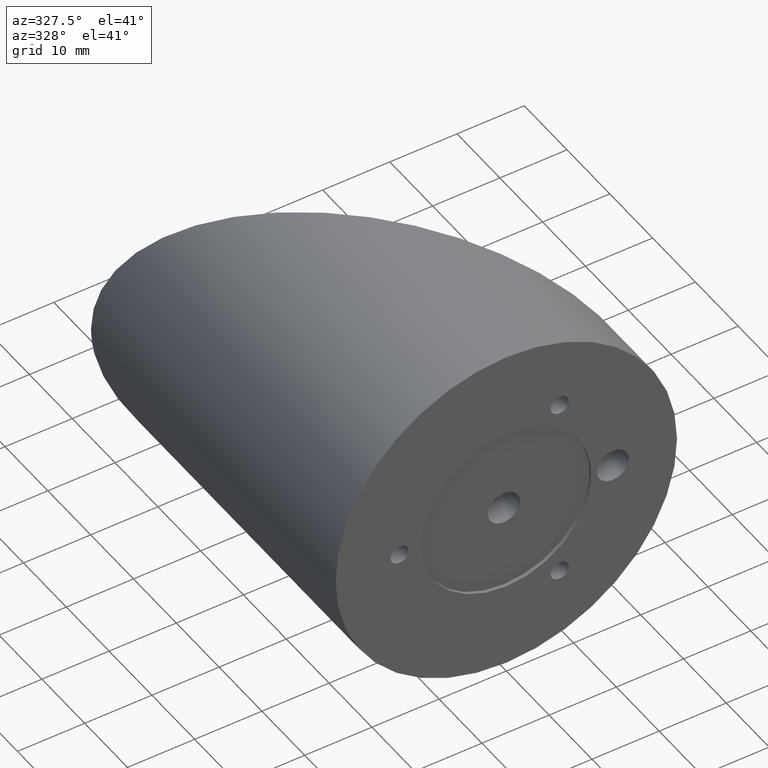
[diagram: clean part render]
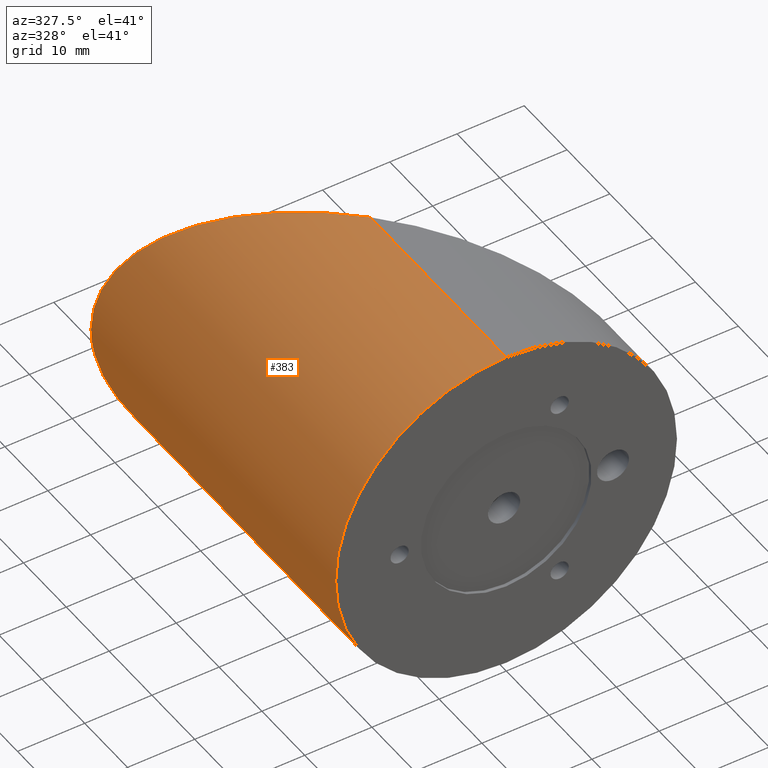
[diagram: same view with one face highlighted and labeled with its STEP entity id]
A machine part, auxiliary view. The second image highlights one B-rep face of the part: STEP entity #383.
In plain terms, the highlighted cylindrical surface (partial cylindrical patch) has radius 25.4 mm, axis along (-0, -1, -0).
Its self-contained STEP definition (entity closure, byte-faithful):
#6 = CARTESIAN_POINT ( 'NONE',  ( -5.677701038054460803, 37.42770103818921257, -24.79850263838227420 ) ) ;
#9 = B_SPLINE_CURVE_WITH_KNOTS ( 'NONE', 3,
 ( #354, #220, #367, #719, #223, #716, #96, #440, #579, #582, #493, #296, #651, #165, #859, #99, #105, #497, #161, #573, #168, #292, #29, #570, #435, #229, #442, #158, #37, #505, #854, #42 ),
 .UNSPECIFIED., .F., .F.,
 ( 4, 2, 2, 2, 2, 2, 2, 2, 2, 2, 2, 2, 2, 2, 2, 4 ),
 ( 0.04810272725894961660, 0.04960341340592316906, 0.05110409955289672151, 0.05410547184684383337, 0.05560615799381738583, 0.05710684414079093829, 0.06010821643473805015, 0.06160890258171160261, 0.06310958872868516201, 0.06611096102263225305, 0.07211370561052643513, 0.07811645019842061721, 0.08411919478631479929, 0.08712056708026189034, 0.09012193937420898138, 0.09612468396210317734 ),
 .UNSPECIFIED. ) ;
#10 = CARTESIAN_POINT ( 'NONE',  ( 3.110602869834276865E-15, 90.23632920900077181, 25.39999999999999858 ) ) ;
#14 = CARTESIAN_POINT ( 'NONE',  ( -25.33990702312139831, 57.08990702325903044, -2.014298265727131998 ) ) ;
#19 = CARTESIAN_POINT ( 'NONE',  ( -17.58012703624189754, 49.33012703637960072, -18.35191151905085860 ) ) ;
#21 = CARTESIAN_POINT ( 'NONE',  ( -22.92713338263313361, 54.67713338277160773, -10.94182197601608664 ) ) ;
#29 = CARTESIAN_POINT ( 'NONE',  ( -13.85126286655956562, 45.60126286669613904, 21.34471803107064858 ) ) ;
#30 = VERTEX_POINT ( 'NONE', #718 ) ;
#37 = CARTESIAN_POINT ( 'NONE',  ( -4.965716845980086447, 36.71571684611458153, 24.92019169298241721 ) ) ;
#42 = CARTESIAN_POINT ( 'NONE',  ( -3.679782173415781046E-12, 31.75000000013650236, 25.39999999999956160 ) ) ;
#45 = EDGE_CURVE ( 'NONE', #529, #218, #180, .T. ) ;
#49 = DIRECTION ( 'NONE',  ( 0.0000000000000000000, 1.000000000000000000, 0.0000000000000000000 ) ) ;
#81 = EDGE_LOOP ( 'NONE', ( #628, #175, #556, #221, #204 ) ) ;
#83 = CARTESIAN_POINT ( 'NONE',  ( -24.17242148413162184, 55.92242148427015280, -7.859274957130898187 ) ) ;
#86 = VECTOR ( 'NONE', #746, 1000.000000000000000 ) ;
#87 = CARTESIAN_POINT ( 'NONE',  ( -25.40000000000032188, 57.15000000013932890, -1.010557820234587956 ) ) ;
#93 = CARTESIAN_POINT ( 'NONE',  ( -23.12656499384053888, 54.87656499397899523, -10.51405073267908463 ) ) ;
#96 = CARTESIAN_POINT ( 'NONE',  ( -24.91912955028560006, 56.66912955042496947, 5.016703429671586001 ) ) ;
#99 = CARTESIAN_POINT ( 'NONE',  ( -21.83922973555702995, 53.58922973569545434, 12.97751472815525453 ) ) ;
#103 = AXIS2_PLACEMENT_3D ( 'NONE', #728, #49, #237 ) ;
#105 = CARTESIAN_POINT ( 'NONE',  ( -21.60348923600461291, 53.35348923614303374, 13.36597650318335084 ) ) ;
#129 = CARTESIAN_POINT ( 'NONE',  ( 3.110602869834276865E-15, 0.0000000000000000000, 25.39999999999999858 ) ) ;
#141 = CARTESIAN_POINT ( 'NONE',  ( -9.826554362969488920, 41.57655436310376729, -23.43414937196584091 ) ) ;
#150 = CARTESIAN_POINT ( 'NONE',  ( -25.16133615855240535, 56.91133615869000550, -3.509876647022597940 ) ) ;
#158 = CARTESIAN_POINT ( 'NONE',  ( -5.671297475159705392, 37.42129747529374839, 24.76944659085237888 ) ) ;
#161 = CARTESIAN_POINT ( 'NONE',  ( -20.36696140388770004, 52.11696140402510480, 15.20119821662446391 ) ) ;
#165 = CARTESIAN_POINT ( 'NONE',  ( -22.50743737487555407, 54.25743737504247832, 11.78087464265349027 ) ) ;
#168 = CARTESIAN_POINT ( 'NONE',  ( -17.60734394690912197, 49.35734394704684291, 18.37816237363568206 ) ) ;
#175 = ORIENTED_EDGE ( 'NONE', *, *, #707, .F. ) ;
#180 = CIRCLE ( 'NONE', #103, 25.39999999999999858 ) ;
#204 = ORIENTED_EDGE ( 'NONE', *, *, #45, .T. ) ;
#206 = CARTESIAN_POINT ( 'NONE',  ( -9.140824242701349078, 40.89082424283716222, -23.70949247268009330 ) ) ;
#212 = CARTESIAN_POINT ( 'NONE',  ( -16.98200230264589194, 48.73200230278249023, -18.90536610217911218 ) ) ;
#214 = CARTESIAN_POINT ( 'NONE',  ( -21.88578385787922542, 53.63578385801744730, -13.02471027405013082 ) ) ;
#218 = VERTEX_POINT ( 'NONE', #129 ) ;
#220 = CARTESIAN_POINT ( 'NONE',  ( -25.40000000000053859, 57.15000000013955628, 0.5044304829905095211 ) ) ;
#221 = ORIENTED_EDGE ( 'NONE', *, *, #227, .T. ) ;
#223 = CARTESIAN_POINT ( 'NONE',  ( -25.27816902003166533, 57.02816902017107736, 2.535475448995170744 ) ) ;
#227 = EDGE_CURVE ( 'NONE', #30, #529, #283, .T. ) ;
#229 = CARTESIAN_POINT ( 'NONE',  ( -7.783134573734113104, 39.53313457386905583, 24.18932817132085233 ) ) ;
#237 = DIRECTION ( 'NONE',  ( 0.0000000000000000000, 0.0000000000000000000, 1.000000000000000000 ) ) ;
#255 = DIRECTION ( 'NONE',  ( 0.0000000000000000000, 0.0000000000000000000, -1.000000000000000000 ) ) ;
#272 = CARTESIAN_POINT ( 'NONE',  ( -18.45338721870927756, 50.20338721884717614, -17.45869069861009137 ) ) ;
#275 = CARTESIAN_POINT ( 'NONE',  ( -11.18977277295161166, 42.93977277308617602, -22.81467757224968551 ) ) ;
#278 = CARTESIAN_POINT ( 'NONE',  ( -23.50161380681167955, 55.25161380695020341, -9.646627374329264981 ) ) ;
#283 = LINE ( 'NONE', #739, #86 ) ;
#292 = CARTESIAN_POINT ( 'NONE',  ( -15.13432881798669172, 46.88432881812384778, 20.46283226548887413 ) ) ;
#296 = CARTESIAN_POINT ( 'NONE',  ( -23.50350774278652111, 55.25350774292535760, 9.678279500984862338 ) ) ;
#324 = VERTEX_POINT ( 'NONE', #754 ) ;
#339 = CARTESIAN_POINT ( 'NONE',  ( -1.437442982173604333, 33.18744298230683398, -25.39999999999999147 ) ) ;
#354 = CARTESIAN_POINT ( 'NONE',  ( -25.39999999999913527, 57.15000000013858994, -3.847054410609410425E-12 ) ) ;
#367 = CARTESIAN_POINT ( 'NONE',  ( -25.38498825607575782, 57.13498825621493182, 1.010564004994066067 ) ) ;
#383 = ADVANCED_FACE ( 'NONE', ( #678 ), #676, .T. ) ;
#399 = AXIS2_PLACEMENT_3D ( 'NONE', #601, #681, #255 ) ;
#401 = DIRECTION ( 'NONE',  ( -0.0000000000000000000, -1.000000000000000000, -0.0000000000000000000 ) ) ;
#409 = VECTOR ( 'NONE', #401, 1000.000000000000000 ) ;
#418 = CARTESIAN_POINT ( 'NONE',  ( -24.45600912901692325, 56.20600912915572422, -6.931286132635298358 ) ) ;
#421 = CARTESIAN_POINT ( 'NONE',  ( -11.86916318420070837, 43.61916318433594597, -22.46925730629628504 ) ) ;
#422 = EDGE_CURVE ( 'NONE', #785, #218, #567, .T. ) ;
#424 = CARTESIAN_POINT ( 'NONE',  ( -15.14508450600852463, 46.89508450614474100, -20.45364255979751178 ) ) ;
#426 = CARTESIAN_POINT ( 'NONE',  ( -24.90868563480985642, 56.65868563494831278, -4.997050904853026054 ) ) ;
#432 = CARTESIAN_POINT ( 'NONE',  ( -23.67798136625153660, 55.42798136638997164, -9.205527645601998543 ) ) ;
#435 = CARTESIAN_POINT ( 'NONE',  ( -9.862800616185486646, 41.61280061632085392, 23.45310829498362182 ) ) ;
#440 = CARTESIAN_POINT ( 'NONE',  ( -24.57160009191056815, 56.32160009204986295, 6.452832837947831912 ) ) ;
#442 = CARTESIAN_POINT ( 'NONE',  ( -7.079510007500359414, 38.82951000763470972, 24.40429547277576461 ) ) ;
#485 = CARTESIAN_POINT ( 'NONE',  ( -13.86413127422855673, 45.61413127436423309, -21.33738733701687096 ) ) ;
#486 = CARTESIAN_POINT ( 'NONE',  ( -25.08703415869370446, 56.83703415883219634, -4.006726209764113200 ) ) ;
#490 = CARTESIAN_POINT ( 'NONE',  ( -18.74118965601103071, 50.49118965614897547, -17.14957378183081715 ) ) ;
#492 = EDGE_CURVE ( 'NONE', #30, #324, #876, .T. ) ;
#493 = CARTESIAN_POINT ( 'NONE',  ( -24.00169820279068844, 55.75169820292964573, 8.325231285724797203 ) ) ;
#497 = CARTESIAN_POINT ( 'NONE',  ( -20.87748549290971667, 52.62748549304797052, 14.49451274477170415 ) ) ;
#505 = CARTESIAN_POINT ( 'NONE',  ( -2.844736194573056043, 34.59473619470711014, 25.28091507878944455 ) ) ;
#529 = VERTEX_POINT ( 'NONE', #778 ) ;
#548 = CARTESIAN_POINT ( 'NONE',  ( -7.072115939561755660, 38.82211593969712737, -24.43939403359795648 ) ) ;
#556 = ORIENTED_EDGE ( 'NONE', *, *, #492, .F. ) ;
#567 = LINE ( 'NONE', #10, #409 ) ;
#570 = CARTESIAN_POINT ( 'NONE',  ( -11.21629007288617252, 42.96629007302217929, 22.83964333840000904 ) ) ;
#573 = CARTESIAN_POINT ( 'NONE',  ( -18.76615306822982632, 50.51615306836688291, 17.20202532302719689 ) ) ;
#579 = CARTESIAN_POINT ( 'NONE',  ( -24.44232522460163182, 56.19232522474101188, 6.926193841206804258 ) ) ;
#582 = CARTESIAN_POINT ( 'NONE',  ( -24.15743513471778314, 55.90743513485711702, 7.862426548023886852 ) ) ;
#601 = CARTESIAN_POINT ( 'NONE',  ( 0.0000000000000000000, 90.23632920900077181, 0.0000000000000000000 ) ) ;
#627 = CARTESIAN_POINT ( 'NONE',  ( 2.883977778811441794E-14, 31.75000000013288570, -25.39999999999999147 ) ) ;
#628 = ORIENTED_EDGE ( 'NONE', *, *, #422, .F. ) ;
#631 = CARTESIAN_POINT ( 'NONE',  ( -20.91861858852555400, 52.66861858866329982, -14.50941548914085288 ) ) ;
#637 = CARTESIAN_POINT ( 'NONE',  ( -24.80483713886876629, 56.55483713900763121, -5.488609296260215764 ) ) ;
#641 = CARTESIAN_POINT ( 'NONE',  ( -25.39999999999913527, 57.15000000013858994, -3.847054410609410425E-12 ) ) ;
#651 = CARTESIAN_POINT ( 'NONE',  ( -23.12815982557397732, 54.87815982574102236, 10.54055032728061825 ) ) ;
#676 = CYLINDRICAL_SURFACE ( 'NONE', #399, 25.39999999999999858 ) ;
#678 = FACE_OUTER_BOUND ( 'NONE', #81, .T. ) ;
#681 = DIRECTION ( 'NONE',  ( -0.0000000000000000000, -1.000000000000000000, -0.0000000000000000000 ) ) ;
#707 = EDGE_CURVE ( 'NONE', #324, #785, #9, .T. ) ;
#710 = CARTESIAN_POINT ( 'NONE',  ( -19.30359263965530303, 51.05359263979335793, -16.51397534887586005 ) ) ;
#716 = CARTESIAN_POINT ( 'NONE',  ( -25.09726571099221104, 56.84726571113159110, 4.037958997173835662 ) ) ;
#718 = CARTESIAN_POINT ( 'NONE',  ( 2.883977778811441794E-14, 31.75000000013288570, -25.39999999999999147 ) ) ;
#719 = CARTESIAN_POINT ( 'NONE',  ( -25.32415586706379074, 57.07415586720293277, 2.026326229892875919 ) ) ;
#728 = CARTESIAN_POINT ( 'NONE',  ( 0.0000000000000000000, 0.0000000000000000000, 0.0000000000000000000 ) ) ;
#730 = CARTESIAN_POINT ( 'NONE',  ( -3.679782173415781046E-12, 31.75000000013650236, 25.39999999999956160 ) ) ;
#739 = CARTESIAN_POINT ( 'NONE',  ( 0.0000000000000000000, 90.23632920900077181, -25.39999999999999858 ) ) ;
#746 = DIRECTION ( 'NONE',  ( -0.0000000000000000000, -1.000000000000000000, -0.0000000000000000000 ) ) ;
#754 = CARTESIAN_POINT ( 'NONE',  ( -25.39999999999913527, 57.15000000013858994, -3.847054410609410425E-12 ) ) ;
#774 = CARTESIAN_POINT ( 'NONE',  ( -19.57834054985107386, 51.32834054998854612, -16.18743541012827691 ) ) ;
#778 = CARTESIAN_POINT ( 'NONE',  ( 0.0000000000000000000, 0.0000000000000000000, -25.39999999999999858 ) ) ;
#785 = VERTEX_POINT ( 'NONE', #730 ) ;
#830 = CARTESIAN_POINT ( 'NONE',  ( -2.860369991385925736, 34.61036999152005933, -25.27885095679303973 ) ) ;
#854 = CARTESIAN_POINT ( 'NONE',  ( -1.425126059627539910, 33.17512605976079243, 25.40000000000005542 ) ) ;
#859 = CARTESIAN_POINT ( 'NONE',  ( -22.29087400770634986, 54.04087400784487016, 12.18543310409961755 ) ) ;
#876 = B_SPLINE_CURVE_WITH_KNOTS ( 'NONE', 3,
 ( #627, #339, #830, #6, #548, #206, #141, #275, #421, #485, #424, #212, #19, #272, #490, #710, #774, #631, #214, #21, #93, #278, #432, #83, #418, #637, #426, #486, #150, #14, #87, #641 ),
 .UNSPECIFIED., .F., .F.,
 ( 4, 2, 2, 2, 2, 2, 2, 2, 2, 2, 2, 2, 2, 2, 2, 4 ),
 ( 0.0000000000000000000, 0.006012840907368716820, 0.01202568181473743364, 0.01503210226842179552, 0.01803852272210615740, 0.02405136362947488463, 0.02705778408315923783, 0.02856099431000140923, 0.03006420453684358063, 0.03607704544421225235, 0.03758025567105442721, 0.03908346589789659514, 0.04208988635158093794, 0.04359309657842310587, 0.04509630680526527380, 0.04810272725894961660 ),
 .UNSPECIFIED. ) ;